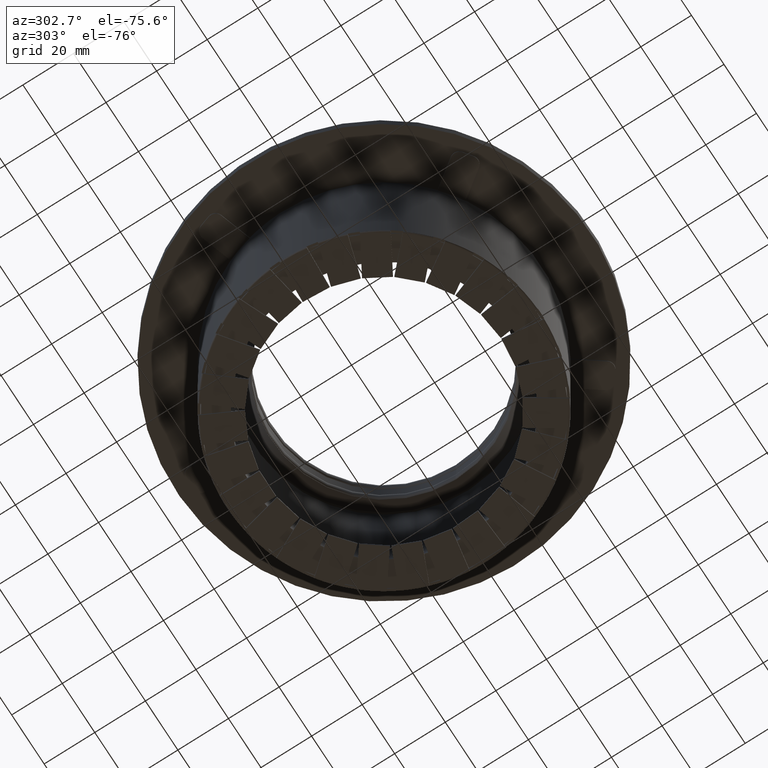
[diagram: clean part render]
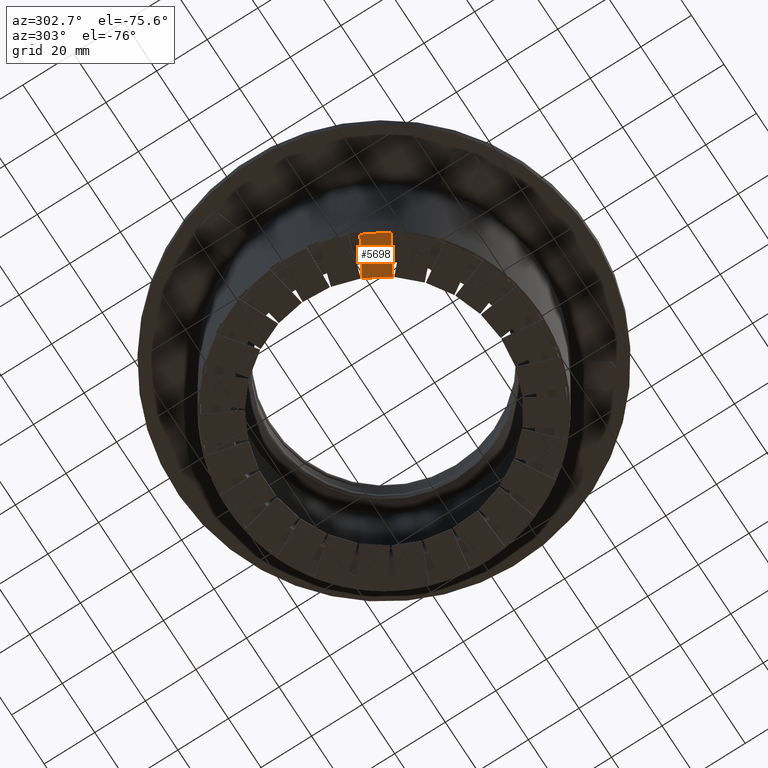
[diagram: same view with one face highlighted and labeled with its STEP entity id]
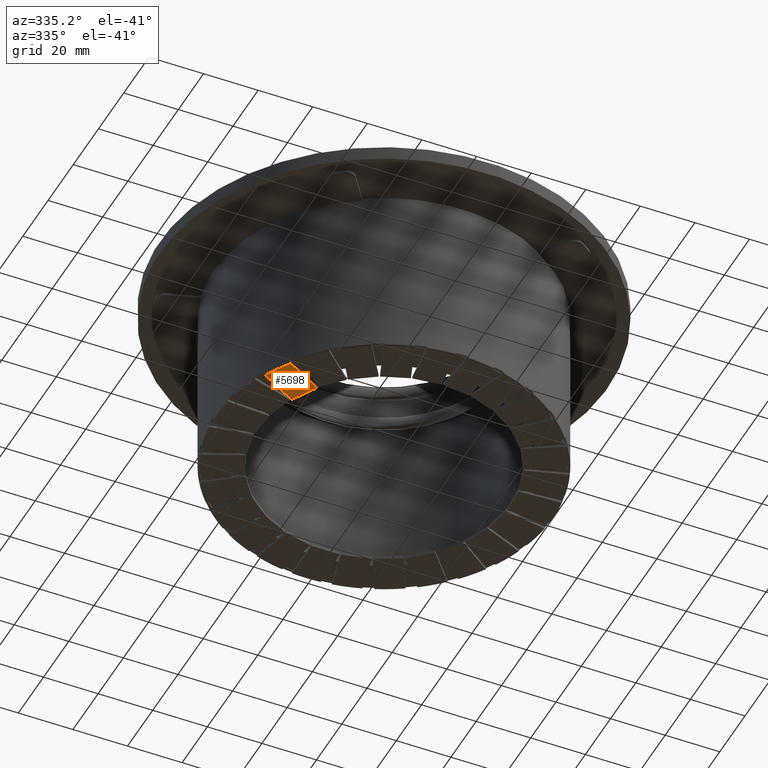
[diagram: same view with one face highlighted and labeled with its STEP entity id]
A machine part, auxiliary view. The second image highlights one B-rep face of the part: STEP entity #5698.
A second angle (auxiliary view) of the same face is appended — the face is thin or edge-on in the first view.
In plain terms, the highlighted planar face has unit normal (0, 0, 1).
Its self-contained STEP definition (entity closure, byte-faithful):
#3292=CARTESIAN_POINT('',(-50.324675093520199,-35.00167248477748,-0.9));
#3293=VERTEX_POINT('',#3292);
#3308=CARTESIAN_POINT('',(-55.47467509352019,-26.081610825797764,-0.9));
#3309=VERTEX_POINT('',#3308);
#3323=CARTESIAN_POINT('',(0.0,0.0,-0.9));
#3324=DIRECTION('',(0.0,0.0,1.0));
#3325=DIRECTION('',(-0.866025403784439,-0.5,0.0));
#3326=AXIS2_PLACEMENT_3D('',#3323,#3324,#3325);
#3327=CIRCLE('',#3326,61.299999999999997);
#3328=EDGE_CURVE('',#3309,#3293,#3327,.T.);
#3356=CARTESIAN_POINT('',(-42.412168574084205,-18.539969170510147,-0.9));
#3357=VERTEX_POINT('',#3356);
#3364=CARTESIAN_POINT('',(-42.412168574084205,-18.539969170510147,-0.9));
#3365=DIRECTION('',(-0.866025403784439,-0.5,0.0));
#3366=VECTOR('',#3365,15.083283310575224);
#3367=LINE('',#3364,#3366);
#3368=EDGE_CURVE('',#3357,#3309,#3367,.T.);
#5630=CARTESIAN_POINT('',(-37.262168574084193,-27.460030829489867,-0.9));
#5631=VERTEX_POINT('',#5630);
#5632=CARTESIAN_POINT('',(-37.262168574084193,-27.460030829489867,-0.9));
#5633=DIRECTION('',(-0.5,0.866025403784438,0.0));
#5634=VECTOR('',#5633,10.300000000000004);
#5635=LINE('',#5632,#5634);
#5636=EDGE_CURVE('',#5631,#3357,#5635,.T.);
#5662=CARTESIAN_POINT('',(-50.324675093520199,-35.001672484777473,-0.9));
#5663=DIRECTION('',(0.866025403784439,0.5,0.0));
#5664=VECTOR('',#5663,15.083283310575229);
#5665=LINE('',#5662,#5664);
#5666=EDGE_CURVE('',#3293,#5631,#5665,.T.);
#5687=CARTESIAN_POINT('',(-46.69614826654491,-26.960033771808373,-0.9));
#5688=DIRECTION('',(0.0,0.0,1.0));
#5689=DIRECTION('',(-0.5,0.866025403784439,0.0));
#5690=AXIS2_PLACEMENT_3D('',#5687,#5688,#5689);
#5691=PLANE('',#5690);
#5692=ORIENTED_EDGE('',*,*,#3328,.F.);
#5693=ORIENTED_EDGE('',*,*,#3368,.F.);
#5694=ORIENTED_EDGE('',*,*,#5636,.F.);
#5695=ORIENTED_EDGE('',*,*,#5666,.F.);
#5696=EDGE_LOOP('',(#5692,#5693,#5694,#5695));
#5697=FACE_OUTER_BOUND('',#5696,.T.);
#5698=ADVANCED_FACE('',(#5697),#5691,.F.);